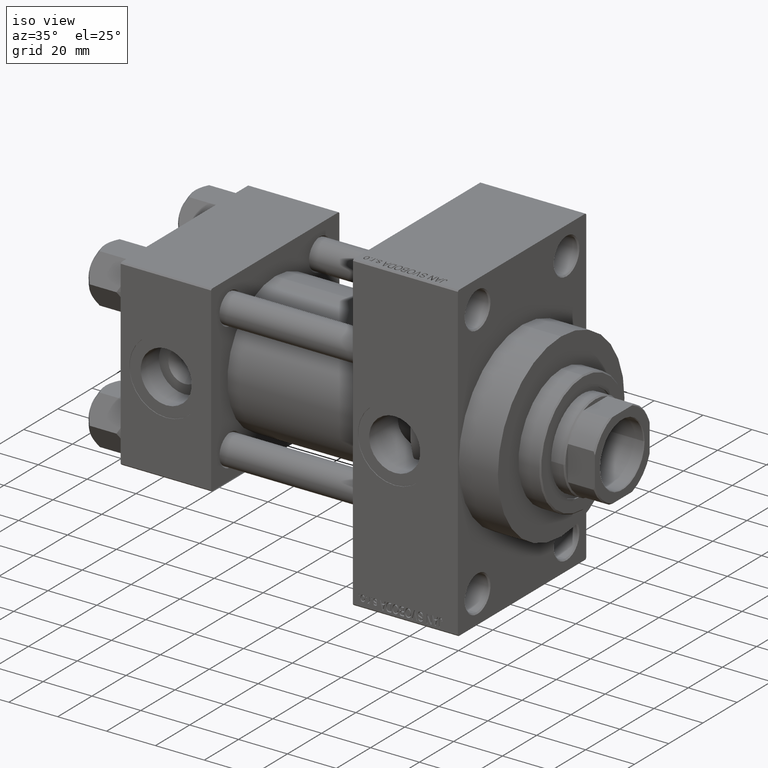
[diagram: clean part render]
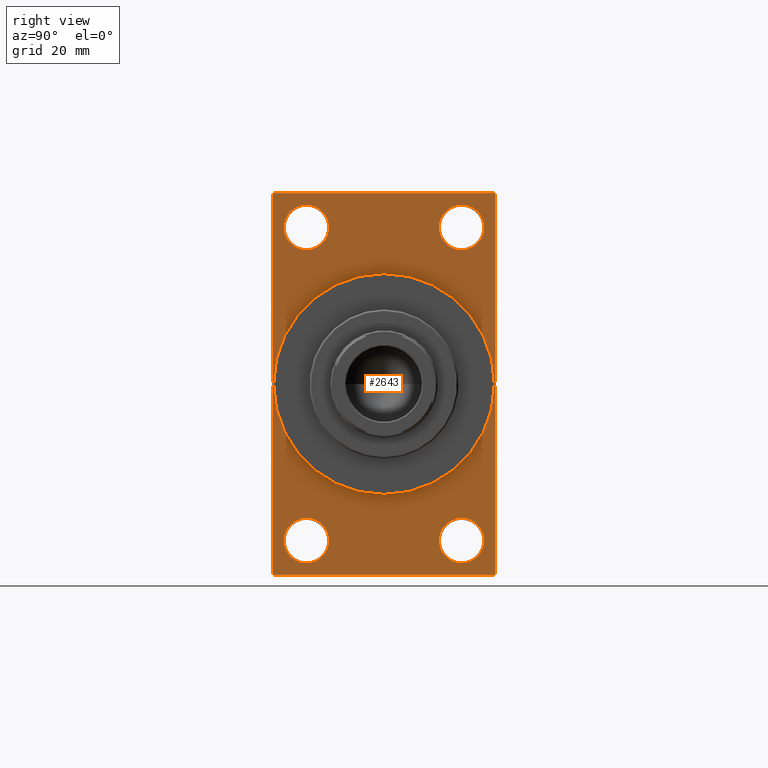
[diagram: tour spotlight — one face highlighted and labeled with its STEP entity id]
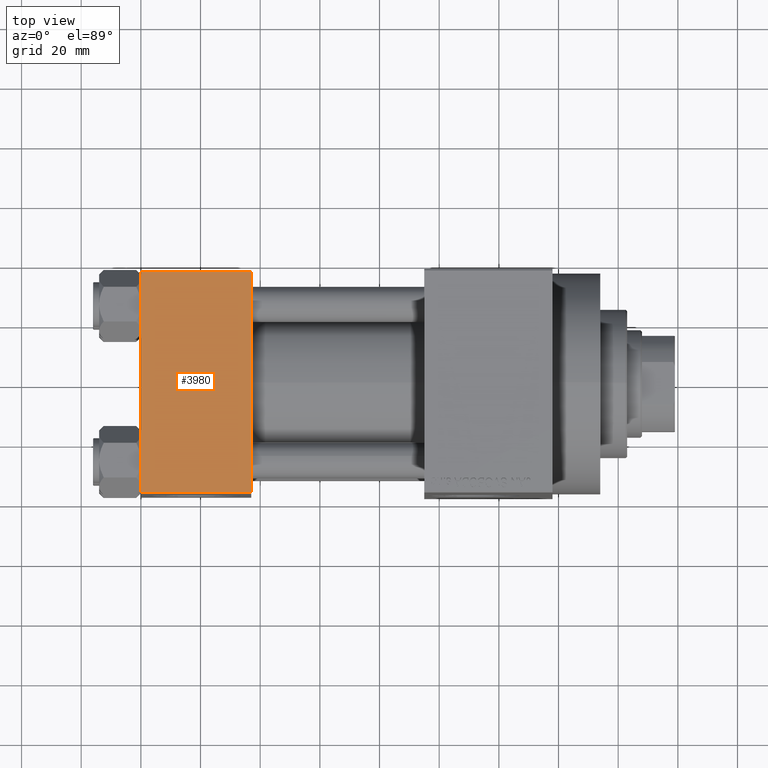
[diagram: tour spotlight — one face highlighted and labeled with its STEP entity id]
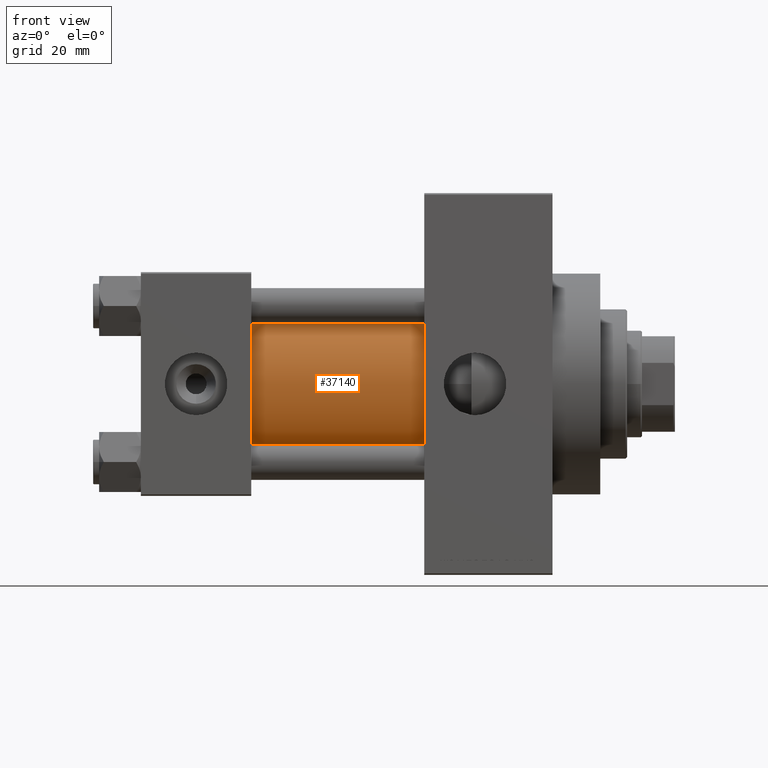
[diagram: tour spotlight — one face highlighted and labeled with its STEP entity id]
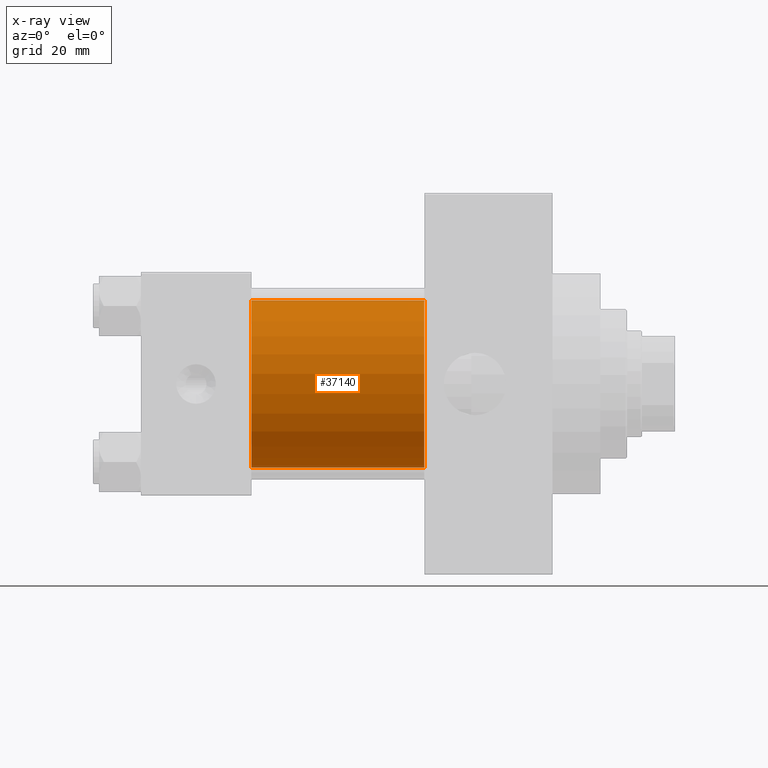
[diagram: x-ray of the same camera — body ghosted, this tour face saturated]
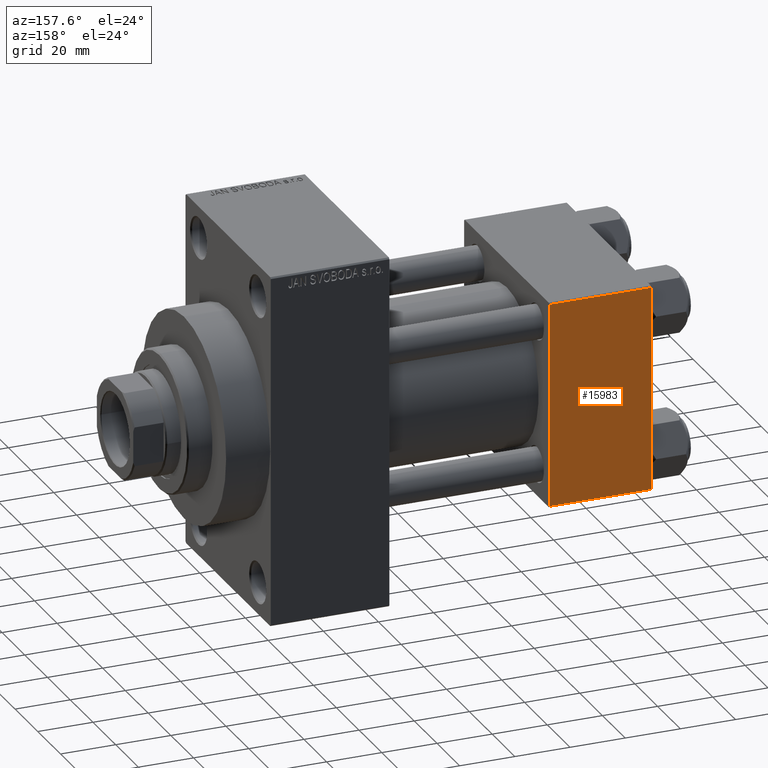
[diagram: tour spotlight — one face highlighted and labeled with its STEP entity id]
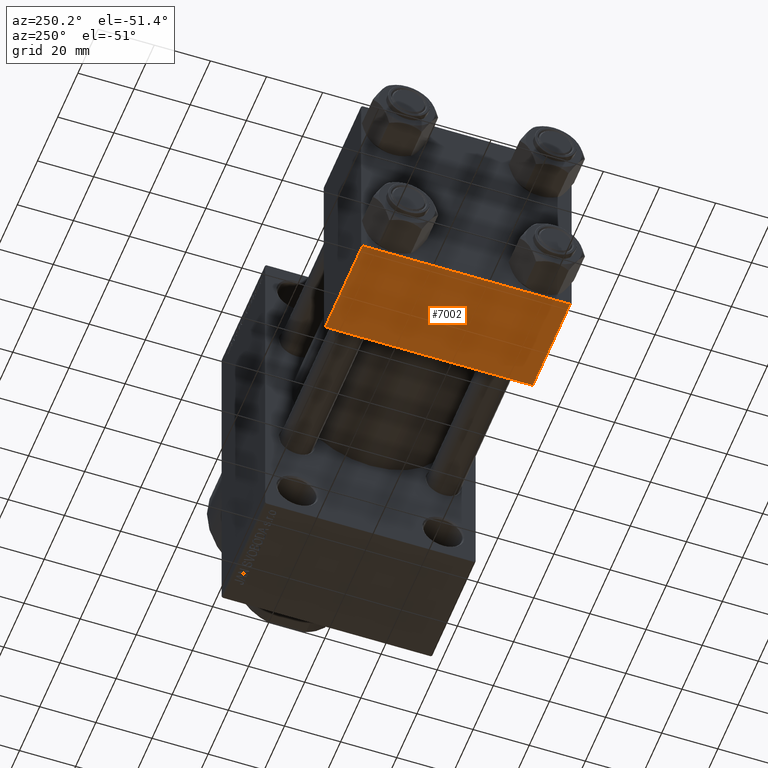
[diagram: tour spotlight — one face highlighted and labeled with its STEP entity id]
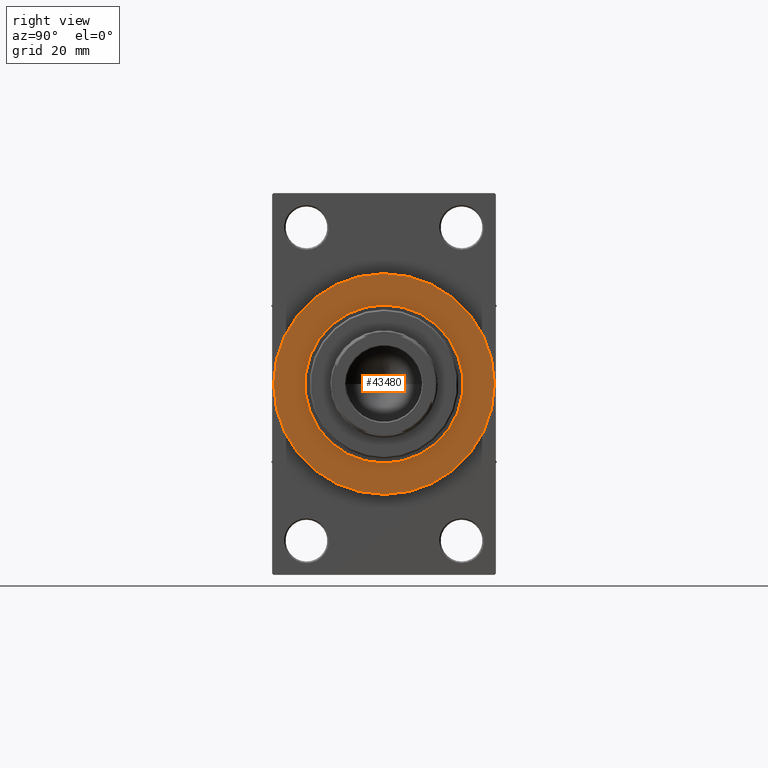
[diagram: tour spotlight — one face highlighted and labeled with its STEP entity id]
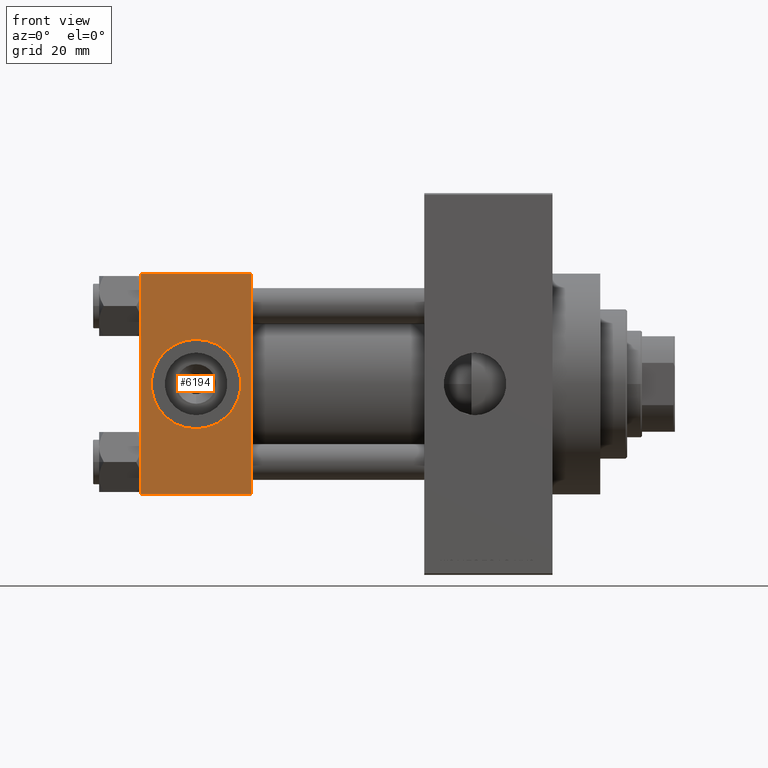
[diagram: tour spotlight — one face highlighted and labeled with its STEP entity id]
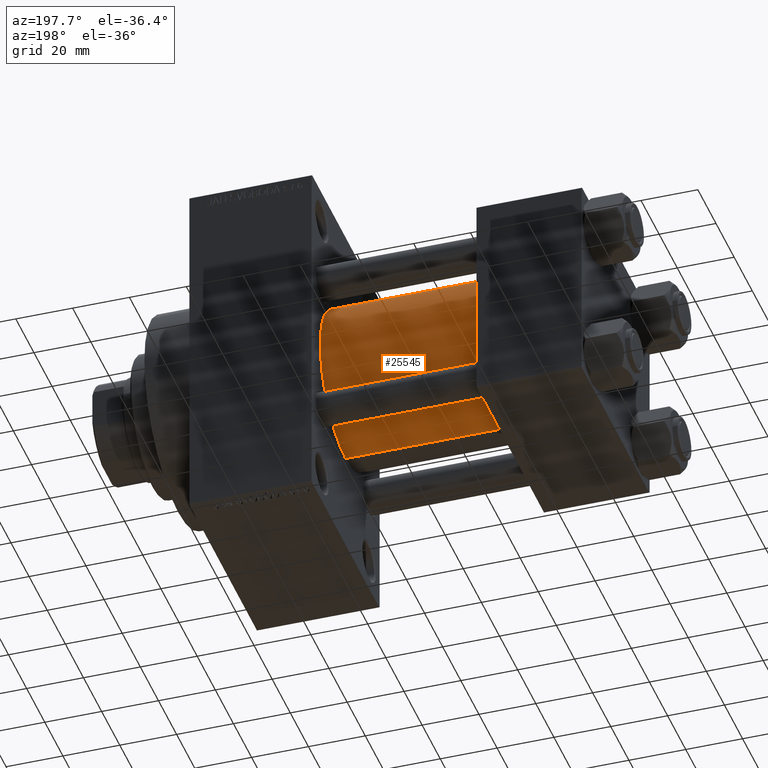
[diagram: tour spotlight — one face highlighted and labeled with its STEP entity id]
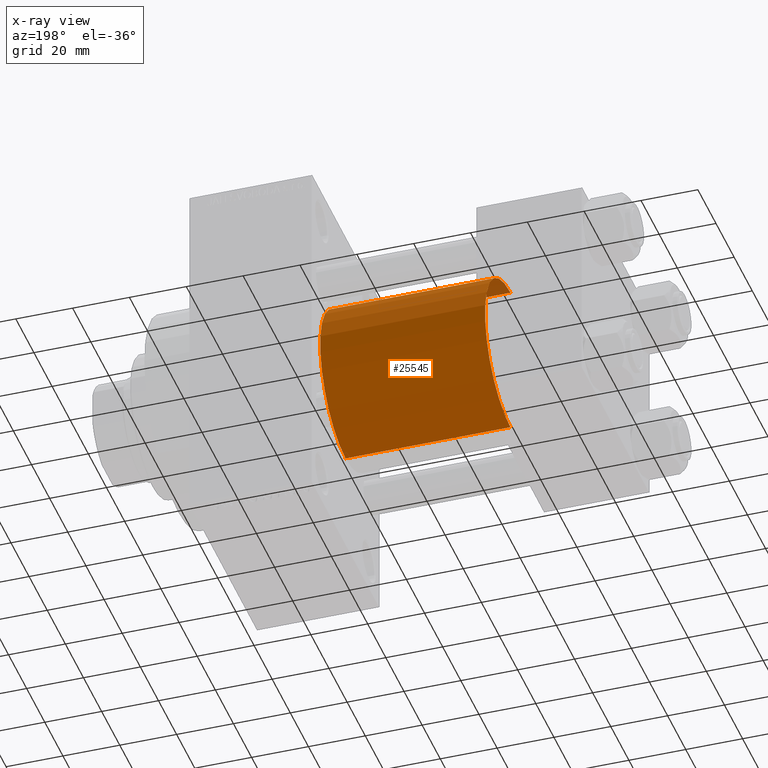
[diagram: x-ray of the same camera — body ghosted, this tour face saturated]
A machine part: a face-by-face anatomy tour. The part has 1104 B-rep faces; the first image is the clean iso view, then the 8 largest visible faces are spotlighted one at a time (largest first), each with its STEP entity span.

Face 1 — right view, entity #2643. In plain terms, the highlighted planar face has unit normal (-1, 0, 0).
Definition (entity closure, byte-faithful):
#136 = VECTOR ( 'NONE', #12666, 1000.000000000000000 ) ;
#301 = VERTEX_POINT ( 'NONE', #16399 ) ;
#358 = CARTESIAN_POINT ( 'NONE',  ( 138.0000000000000000, 36.99999999999997158, 63.99999999999998579 ) ) ;
#398 = CARTESIAN_POINT ( 'NONE',  ( 138.0000000000000000, -37.49999999999999289, 63.99999999999997158 ) ) ;
#1171 = CARTESIAN_POINT ( 'NONE',  ( 138.0000000000000000, -36.99999999999993605, -64.00000000000001421 ) ) ;
#1244 = CIRCLE ( 'NONE', #5836, 7.500000000000007105 ) ;
#1406 = CIRCLE ( 'NONE', #22048, 7.500000000000007105 ) ;
#1420 = CARTESIAN_POINT ( 'NONE',  ( 138.0000000000000000, -25.99999999999999645, 60.00000000000000711 ) ) ;
#1608 = EDGE_CURVE ( 'NONE', #36813, #31689, #1406, .T. ) ;
#2289 = CARTESIAN_POINT ( 'NONE',  ( 138.0000000000000000, -25.99999999999999645, -44.99999999999998579 ) ) ;
#2437 = VECTOR ( 'NONE', #21643, 1000.000000000000000 ) ;
#2625 = DIRECTION ( 'NONE',  ( 0.000000000000000000, -1.000000000000000000, -1.850371707708594563E-16 ) ) ;
#2643 = ADVANCED_FACE ( 'NONE', ( #27420, #34823, #16708, #43416, #42705, #46289 ), #7148, .F. ) ;
#2821 = LINE ( 'NONE', #17396, #18168 ) ;
#3546 = DIRECTION ( 'NONE',  ( 0.000000000000000000, -5.421010862427522170E-17, -1.000000000000000000 ) ) ;
#3555 = DIRECTION ( 'NONE',  ( -1.000000000000000000, 0.000000000000000000, -0.000000000000000000 ) ) ;
#3947 = ORIENTED_EDGE ( 'NONE', *, *, #25293, .T. ) ;
#4187 = EDGE_LOOP ( 'NONE', ( #30699, #28519 ) ) ;
#5275 = ORIENTED_EDGE ( 'NONE', *, *, #24184, .T. ) ;
#5653 = DIRECTION ( 'NONE',  ( 0.000000000000000000, 0.000000000000000000, 1.000000000000000000 ) ) ;
#5836 = AXIS2_PLACEMENT_3D ( 'NONE', #21641, #29032, #43598 ) ;
#6098 = AXIS2_PLACEMENT_3D ( 'NONE', #28850, #17661, #24796 ) ;
#6153 = EDGE_LOOP ( 'NONE', ( #17266, #9884 ) ) ;
#6237 = AXIS2_PLACEMENT_3D ( 'NONE', #32932, #40317, #8098 ) ;
#6274 = CARTESIAN_POINT ( 'NONE',  ( 138.0000000000000000, 36.99999999999999289, -64.00000000000000000 ) ) ;
#6416 = VERTEX_POINT ( 'NONE', #15379 ) ;
#6542 = ORIENTED_EDGE ( 'NONE', *, *, #42463, .T. ) ;
#6606 = VERTEX_POINT ( 'NONE', #35611 ) ;
#6690 = VECTOR ( 'NONE', #47154, 1000.000000000000000 ) ;
#6878 = ORIENTED_EDGE ( 'NONE', *, *, #37561, .T. ) ;
#6929 = EDGE_CURVE ( 'NONE', #14658, #31014, #45114, .T. ) ;
#7119 = EDGE_CURVE ( 'NONE', #17736, #29966, #7777, .T. ) ;
#7148 = PLANE ( 'NONE',  #6098 ) ;
#7185 = CARTESIAN_POINT ( 'NONE',  ( 138.0000000000000000, -25.99999999999999645, -52.49999999999999289 ) ) ;
#7777 = CIRCLE ( 'NONE', #6237, 37.00000000000000000 ) ;
#7880 = ORIENTED_EDGE ( 'NONE', *, *, #6929, .T. ) ;
#8098 = DIRECTION ( 'NONE',  ( 0.000000000000000000, 0.000000000000000000, -1.000000000000000000 ) ) ;
#8261 = VERTEX_POINT ( 'NONE', #28440 ) ;
#8502 = VECTOR ( 'NONE', #19272, 999.9999999999998863 ) ;
#9019 = CIRCLE ( 'NONE', #28813, 7.500000000000007105 ) ;
#9884 = ORIENTED_EDGE ( 'NONE', *, *, #43584, .T. ) ;
#9948 = EDGE_CURVE ( 'NONE', #25614, #21559, #21838, .T. ) ;
#10690 = CARTESIAN_POINT ( 'NONE',  ( 138.0000000000000000, 37.49999999999999289, -64.00000000000000000 ) ) ;
#10732 = CARTESIAN_POINT ( 'NONE',  ( 138.0000000000000000, 26.00000000000000000, 52.49999999999999289 ) ) ;
#11133 = CIRCLE ( 'NONE', #37763, 7.500000000000007105 ) ;
#11416 = CARTESIAN_POINT ( 'NONE',  ( 138.0000000000000000, 26.00000000000000000, -52.49999999999999289 ) ) ;
#12212 = EDGE_CURVE ( 'NONE', #21559, #301, #2821, .T. ) ;
#12236 = EDGE_CURVE ( 'NONE', #22977, #44106, #9019, .T. ) ;
#12238 = DIRECTION ( 'NONE',  ( -0.000000000000000000, -0.7071067811865524577, -0.7071067811865426878 ) ) ;
#12431 = CARTESIAN_POINT ( 'NONE',  ( 138.0000000000000000, 37.49999999999999289, -63.50000000000001421 ) ) ;
#12666 = DIRECTION ( 'NONE',  ( -0.000000000000000000, 0.7071067811865573427, 0.7071067811865378028 ) ) ;
#12973 = ORIENTED_EDGE ( 'NONE', *, *, #37583, .T. ) ;
#13021 = CARTESIAN_POINT ( 'NONE',  ( 138.0000000000000000, 0.000000000000000000, 37.00000000000000000 ) ) ;
#13108 = EDGE_CURVE ( 'NONE', #14186, #20908, #39548, .T. ) ;
#14186 = VERTEX_POINT ( 'NONE', #36667 ) ;
#14658 = VERTEX_POINT ( 'NONE', #6274 ) ;
#14907 = CARTESIAN_POINT ( 'NONE',  ( 138.0000000000000000, -37.49999999999999289, 63.49999999999994316 ) ) ;
#15225 = DIRECTION ( 'NONE',  ( 0.000000000000000000, -1.000000000000000000, -1.850371707708594563E-16 ) ) ;
#15379 = CARTESIAN_POINT ( 'NONE',  ( 138.0000000000000000, -37.49999999999999289, -63.49999999999997158 ) ) ;
#16164 = VECTOR ( 'NONE', #2625, 1000.000000000000000 ) ;
#16399 = CARTESIAN_POINT ( 'NONE',  ( 138.0000000000000000, -36.99999999999995737, 63.99999999999997158 ) ) ;
#16503 = EDGE_LOOP ( 'NONE', ( #12973, #20522 ) ) ;
#16708 = FACE_BOUND ( 'NONE', #6153, .T. ) ;
#16722 = LINE ( 'NONE', #10690, #16164 ) ;
#17090 = EDGE_CURVE ( 'NONE', #301, #8261, #26314, .T. ) ;
#17266 = ORIENTED_EDGE ( 'NONE', *, *, #12236, .T. ) ;
#17396 = CARTESIAN_POINT ( 'NONE',  ( 138.0000000000000000, 37.50000000000000000, 63.99999999999998579 ) ) ;
#17420 = DIRECTION ( 'NONE',  ( 0.000000000000000000, 0.000000000000000000, 1.000000000000000000 ) ) ;
#17661 = DIRECTION ( 'NONE',  ( -1.000000000000000000, 0.000000000000000000, -0.000000000000000000 ) ) ;
#17736 = VERTEX_POINT ( 'NONE', #13021 ) ;
#18168 = VECTOR ( 'NONE', #15225, 1000.000000000000000 ) ;
#18208 = AXIS2_PLACEMENT_3D ( 'NONE', #10732, #3555, #17420 ) ;
#18470 = CIRCLE ( 'NONE', #29892, 7.500000000000007105 ) ;
#19151 = ORIENTED_EDGE ( 'NONE', *, *, #1608, .T. ) ;
#19272 = DIRECTION ( 'NONE',  ( 0.000000000000000000, 0.7071067811865574537, -0.7071067811865376918 ) ) ;
#19833 = VERTEX_POINT ( 'NONE', #1420 ) ;
#20522 = ORIENTED_EDGE ( 'NONE', *, *, #13108, .T. ) ;
#20908 = VERTEX_POINT ( 'NONE', #36371 ) ;
#20916 = DIRECTION ( 'NONE',  ( -1.000000000000000000, 0.000000000000000000, -0.000000000000000000 ) ) ;
#21086 = CARTESIAN_POINT ( 'NONE',  ( 138.0000000000000000, 0.000000000000000000, 0.000000000000000000 ) ) ;
#21327 = DIRECTION ( 'NONE',  ( 1.000000000000000000, 0.000000000000000000, 0.000000000000000000 ) ) ;
#21436 = CARTESIAN_POINT ( 'NONE',  ( 138.0000000000000000, 26.00000000000000000, -60.00000000000000000 ) ) ;
#21559 = VERTEX_POINT ( 'NONE', #45897 ) ;
#21623 = CARTESIAN_POINT ( 'NONE',  ( 138.0000000000000000, -25.99999999999999645, -52.49999999999999289 ) ) ;
#21641 = CARTESIAN_POINT ( 'NONE',  ( 138.0000000000000000, 26.00000000000000000, -52.49999999999999289 ) ) ;
#21643 = DIRECTION ( 'NONE',  ( 0.000000000000000000, 0.000000000000000000, -1.000000000000000000 ) ) ;
#21734 = DIRECTION ( 'NONE',  ( -1.000000000000000000, 0.000000000000000000, -0.000000000000000000 ) ) ;
#21838 = LINE ( 'NONE', #358, #6690 ) ;
#22048 = AXIS2_PLACEMENT_3D ( 'NONE', #21623, #36175, #32844 ) ;
#22580 = EDGE_CURVE ( 'NONE', #19833, #6606, #18470, .T. ) ;
#22828 = VECTOR ( 'NONE', #12238, 1000.000000000000000 ) ;
#22977 = VERTEX_POINT ( 'NONE', #21436 ) ;
#22982 = DIRECTION ( 'NONE',  ( -1.000000000000000000, 0.000000000000000000, -0.000000000000000000 ) ) ;
#23044 = DIRECTION ( 'NONE',  ( 0.000000000000000000, 0.000000000000000000, 1.000000000000000000 ) ) ;
#23750 = VERTEX_POINT ( 'NONE', #1171 ) ;
#23857 = VECTOR ( 'NONE', #3546, 1000.000000000000000 ) ;
#24143 = AXIS2_PLACEMENT_3D ( 'NONE', #7185, #35343, #32005 ) ;
#24184 = EDGE_CURVE ( 'NONE', #6416, #23750, #44799, .T. ) ;
#24796 = DIRECTION ( 'NONE',  ( -0.000000000000000000, 0.000000000000000000, 1.000000000000000000 ) ) ;
#25293 = EDGE_CURVE ( 'NONE', #8261, #6416, #32627, .T. ) ;
#25614 = VERTEX_POINT ( 'NONE', #30841 ) ;
#25993 = EDGE_CURVE ( 'NONE', #14658, #23750, #16722, .T. ) ;
#26314 = LINE ( 'NONE', #14907, #22828 ) ;
#27420 = FACE_BOUND ( 'NONE', #37675, .T. ) ;
#27665 = EDGE_CURVE ( 'NONE', #25614, #31014, #43160, .T. ) ;
#27769 = EDGE_CURVE ( 'NONE', #29966, #17736, #45982, .T. ) ;
#27862 = EDGE_LOOP ( 'NONE', ( #19151, #6878 ) ) ;
#28001 = DIRECTION ( 'NONE',  ( 0.000000000000000000, 0.000000000000000000, -1.000000000000000000 ) ) ;
#28440 = CARTESIAN_POINT ( 'NONE',  ( 138.0000000000000000, -37.49999999999999289, 63.49999999999994316 ) ) ;
#28457 = ORIENTED_EDGE ( 'NONE', *, *, #12212, .T. ) ;
#28498 = CARTESIAN_POINT ( 'NONE',  ( 138.0000000000000000, 4.531193156845206793E-15, -37.00000000000000000 ) ) ;
#28519 = ORIENTED_EDGE ( 'NONE', *, *, #27769, .F. ) ;
#28598 = CARTESIAN_POINT ( 'NONE',  ( 138.0000000000000000, 37.50000000000000000, 63.99999999999998579 ) ) ;
#28813 = AXIS2_PLACEMENT_3D ( 'NONE', #11416, #37142, #23044 ) ;
#28850 = CARTESIAN_POINT ( 'NONE',  ( 138.0000000000000000, 0.000000000000000000, 0.000000000000000000 ) ) ;
#29032 = DIRECTION ( 'NONE',  ( -1.000000000000000000, 0.000000000000000000, -0.000000000000000000 ) ) ;
#29892 = AXIS2_PLACEMENT_3D ( 'NONE', #44262, #22982, #36859 ) ;
#29966 = VERTEX_POINT ( 'NONE', #28498 ) ;
#30699 = ORIENTED_EDGE ( 'NONE', *, *, #7119, .F. ) ;
#30841 = CARTESIAN_POINT ( 'NONE',  ( 138.0000000000000000, 37.50000000000000000, 63.49999999999998579 ) ) ;
#31014 = VERTEX_POINT ( 'NONE', #36388 ) ;
#31098 = CARTESIAN_POINT ( 'NONE',  ( 138.0000000000000000, 26.00000000000000000, -44.99999999999998579 ) ) ;
#31421 = CARTESIAN_POINT ( 'NONE',  ( 138.0000000000000000, -25.99999999999999645, 52.50000000000000000 ) ) ;
#31689 = VERTEX_POINT ( 'NONE', #2289 ) ;
#32005 = DIRECTION ( 'NONE',  ( 0.000000000000000000, 0.000000000000000000, 1.000000000000000000 ) ) ;
#32478 = DIRECTION ( 'NONE',  ( 0.000000000000000000, 0.000000000000000000, 1.000000000000000000 ) ) ;
#32627 = LINE ( 'NONE', #398, #2437 ) ;
#32844 = DIRECTION ( 'NONE',  ( 0.000000000000000000, 0.000000000000000000, 1.000000000000000000 ) ) ;
#32932 = CARTESIAN_POINT ( 'NONE',  ( 138.0000000000000000, 0.000000000000000000, 0.000000000000000000 ) ) ;
#34823 = FACE_BOUND ( 'NONE', #27862, .T. ) ;
#35343 = DIRECTION ( 'NONE',  ( -1.000000000000000000, 0.000000000000000000, -0.000000000000000000 ) ) ;
#35380 = ORIENTED_EDGE ( 'NONE', *, *, #9948, .T. ) ;
#35611 = CARTESIAN_POINT ( 'NONE',  ( 138.0000000000000000, -25.99999999999999645, 44.99999999999999289 ) ) ;
#36175 = DIRECTION ( 'NONE',  ( -1.000000000000000000, 0.000000000000000000, -0.000000000000000000 ) ) ;
#36371 = CARTESIAN_POINT ( 'NONE',  ( 138.0000000000000000, 26.00000000000000000, 44.99999999999998579 ) ) ;
#36388 = CARTESIAN_POINT ( 'NONE',  ( 138.0000000000000000, 37.49999999999999289, -63.50000000000001421 ) ) ;
#36667 = CARTESIAN_POINT ( 'NONE',  ( 138.0000000000000000, 26.00000000000000000, 60.00000000000000000 ) ) ;
#36813 = VERTEX_POINT ( 'NONE', #38318 ) ;
#36859 = DIRECTION ( 'NONE',  ( 0.000000000000000000, 0.000000000000000000, 1.000000000000000000 ) ) ;
#37077 = EDGE_LOOP ( 'NONE', ( #3947, #5275, #43988, #7880, #46192, #35380, #28457, #39866 ) ) ;
#37142 = DIRECTION ( 'NONE',  ( -1.000000000000000000, 0.000000000000000000, -0.000000000000000000 ) ) ;
#37561 = EDGE_CURVE ( 'NONE', #31689, #36813, #41664, .T. ) ;
#37583 = EDGE_CURVE ( 'NONE', #20908, #14186, #40889, .T. ) ;
#37624 = CARTESIAN_POINT ( 'NONE',  ( 138.0000000000000000, -36.99999999999993605, -64.00000000000001421 ) ) ;
#37675 = EDGE_LOOP ( 'NONE', ( #6542, #46919 ) ) ;
#37763 = AXIS2_PLACEMENT_3D ( 'NONE', #31421, #20916, #5653 ) ;
#38318 = CARTESIAN_POINT ( 'NONE',  ( 138.0000000000000000, -25.99999999999999645, -60.00000000000000000 ) ) ;
#39548 = CIRCLE ( 'NONE', #18208, 7.500000000000007105 ) ;
#39866 = ORIENTED_EDGE ( 'NONE', *, *, #17090, .T. ) ;
#39877 = AXIS2_PLACEMENT_3D ( 'NONE', #21086, #21327, #28001 ) ;
#40317 = DIRECTION ( 'NONE',  ( 1.000000000000000000, 0.000000000000000000, 0.000000000000000000 ) ) ;
#40889 = CIRCLE ( 'NONE', #42543, 7.500000000000007105 ) ;
#41664 = CIRCLE ( 'NONE', #24143, 7.500000000000007105 ) ;
#42463 = EDGE_CURVE ( 'NONE', #6606, #19833, #11133, .T. ) ;
#42543 = AXIS2_PLACEMENT_3D ( 'NONE', #47046, #21734, #32478 ) ;
#42705 = FACE_BOUND ( 'NONE', #4187, .T. ) ;
#43160 = LINE ( 'NONE', #28598, #23857 ) ;
#43416 = FACE_BOUND ( 'NONE', #16503, .T. ) ;
#43584 = EDGE_CURVE ( 'NONE', #44106, #22977, #1244, .T. ) ;
#43598 = DIRECTION ( 'NONE',  ( 0.000000000000000000, 0.000000000000000000, 1.000000000000000000 ) ) ;
#43988 = ORIENTED_EDGE ( 'NONE', *, *, #25993, .F. ) ;
#44106 = VERTEX_POINT ( 'NONE', #31098 ) ;
#44262 = CARTESIAN_POINT ( 'NONE',  ( 138.0000000000000000, -25.99999999999999645, 52.50000000000000000 ) ) ;
#44799 = LINE ( 'NONE', #37624, #8502 ) ;
#45114 = LINE ( 'NONE', #12431, #136 ) ;
#45897 = CARTESIAN_POINT ( 'NONE',  ( 138.0000000000000000, 36.99999999999997158, 63.99999999999998579 ) ) ;
#45982 = CIRCLE ( 'NONE', #39877, 37.00000000000000000 ) ;
#46192 = ORIENTED_EDGE ( 'NONE', *, *, #27665, .F. ) ;
#46289 = FACE_OUTER_BOUND ( 'NONE', #37077, .T. ) ;
#46919 = ORIENTED_EDGE ( 'NONE', *, *, #22580, .T. ) ;
#47046 = CARTESIAN_POINT ( 'NONE',  ( 138.0000000000000000, 26.00000000000000000, 52.49999999999999289 ) ) ;
#47154 = DIRECTION ( 'NONE',  ( 0.000000000000000000, -0.7071067811865672237, 0.7071067811865279218 ) ) ;

Face 2 — top view, entity #3980. In plain terms, the highlighted planar face has unit normal (0, 0, -1).
Definition (entity closure, byte-faithful):
#3980 = ADVANCED_FACE ( 'NONE', ( #6390 ), #32155, .F. ) ;
#4804 = VERTEX_POINT ( 'NONE', #34049 ) ;
#5476 = EDGE_CURVE ( 'NONE', #4804, #27371, #7505, .T. ) ;
#6390 = FACE_OUTER_BOUND ( 'NONE', #16740, .T. ) ;
#7098 = DIRECTION ( 'NONE',  ( 0.000000000000000000, 9.251858538542971581E-17, -1.000000000000000000 ) ) ;
#7505 = LINE ( 'NONE', #22738, #37377 ) ;
#11694 = CARTESIAN_POINT ( 'NONE',  ( 37.00000000000000000, -37.00000000000000711, 37.49999999999999289 ) ) ;
#11845 = ORIENTED_EDGE ( 'NONE', *, *, #33134, .F. ) ;
#13264 = VERTEX_POINT ( 'NONE', #30232 ) ;
#14779 = ORIENTED_EDGE ( 'NONE', *, *, #45902, .T. ) ;
#14909 = DIRECTION ( 'NONE',  ( -1.000000000000000000, 0.000000000000000000, 0.000000000000000000 ) ) ;
#16277 = LINE ( 'NONE', #45378, #26270 ) ;
#16740 = EDGE_LOOP ( 'NONE', ( #22543, #14779, #11845, #17886 ) ) ;
#16860 = VECTOR ( 'NONE', #30981, 1000.000000000000000 ) ;
#17406 = VECTOR ( 'NONE', #33398, 1000.000000000000000 ) ;
#17886 = ORIENTED_EDGE ( 'NONE', *, *, #5476, .T. ) ;
#19305 = LINE ( 'NONE', #23829, #16860 ) ;
#22543 = ORIENTED_EDGE ( 'NONE', *, *, #22851, .T. ) ;
#22738 = CARTESIAN_POINT ( 'NONE',  ( 0.000000000000000000, 36.99999999999999289, 37.50000000000000000 ) ) ;
#22851 = EDGE_CURVE ( 'NONE', #27371, #23585, #19305, .T. ) ;
#23585 = VERTEX_POINT ( 'NONE', #46106 ) ;
#23829 = CARTESIAN_POINT ( 'NONE',  ( 0.000000000000000000, 37.49999999999999289, 37.50000000000000000 ) ) ;
#26270 = VECTOR ( 'NONE', #27228, 1000.000000000000000 ) ;
#26673 = AXIS2_PLACEMENT_3D ( 'NONE', #39078, #7098, #32631 ) ;
#27228 = DIRECTION ( 'NONE',  ( 0.000000000000000000, -1.000000000000000000, -9.251858538542971581E-17 ) ) ;
#27371 = VERTEX_POINT ( 'NONE', #43698 ) ;
#29120 = LINE ( 'NONE', #11694, #17406 ) ;
#30232 = CARTESIAN_POINT ( 'NONE',  ( 37.00000000000000000, -37.00000000000000711, 37.49999999999999289 ) ) ;
#30981 = DIRECTION ( 'NONE',  ( 0.000000000000000000, -1.000000000000000000, -9.251858538542971581E-17 ) ) ;
#32155 = PLANE ( 'NONE',  #26673 ) ;
#32631 = DIRECTION ( 'NONE',  ( 0.000000000000000000, 1.000000000000000000, 9.251858538542971581E-17 ) ) ;
#33134 = EDGE_CURVE ( 'NONE', #4804, #13264, #16277, .T. ) ;
#33398 = DIRECTION ( 'NONE',  ( 1.000000000000000000, 0.000000000000000000, 0.000000000000000000 ) ) ;
#34049 = CARTESIAN_POINT ( 'NONE',  ( 37.00000000000000000, 36.99999999999999289, 37.50000000000000000 ) ) ;
#37377 = VECTOR ( 'NONE', #14909, 1000.000000000000000 ) ;
#39078 = CARTESIAN_POINT ( 'NONE',  ( 37.00000000000000000, 37.49999999999999289, 37.50000000000000000 ) ) ;
#43698 = CARTESIAN_POINT ( 'NONE',  ( 0.000000000000000000, 36.99999999999999289, 37.50000000000000000 ) ) ;
#45378 = CARTESIAN_POINT ( 'NONE',  ( 37.00000000000000000, 37.49999999999999289, 37.50000000000000000 ) ) ;
#45902 = EDGE_CURVE ( 'NONE', #23585, #13264, #29120, .T. ) ;
#46106 = CARTESIAN_POINT ( 'NONE',  ( 0.000000000000000000, -37.00000000000000711, 37.49999999999999289 ) ) ;

Face 3 — front view, entity #37140. An x-ray twin of the same camera follows (body ghosted, this face saturated) — the face is partly hidden behind the body. In plain terms, the highlighted cylindrical surface (partial cylindrical patch) has radius 28 mm, axis along (-1, -0, -0).
Definition (entity closure, byte-faithful):
#1616 = DIRECTION ( 'NONE',  ( 1.000000000000000000, -0.000000000000000000, 0.000000000000000000 ) ) ;
#3971 = CARTESIAN_POINT ( 'NONE',  ( 95.00000000000000000, -2.602085213965210642E-15, 28.00000000000000000 ) ) ;
#4367 = EDGE_CURVE ( 'NONE', #28517, #35690, #24222, .T. ) ;
#7794 = DIRECTION ( 'NONE',  ( -1.000000000000000000, -0.000000000000000000, -0.000000000000000000 ) ) ;
#8323 = DIRECTION ( 'NONE',  ( 1.000000000000000000, 0.000000000000000000, 0.000000000000000000 ) ) ;
#10510 = EDGE_CURVE ( 'NONE', #24004, #35690, #21948, .T. ) ;
#10624 = CARTESIAN_POINT ( 'NONE',  ( 95.00000000000000000, 8.269258236473776482E-16, -28.00000000000000000 ) ) ;
#11524 = EDGE_LOOP ( 'NONE', ( #12145, #43323, #18605, #26859 ) ) ;
#12145 = ORIENTED_EDGE ( 'NONE', *, *, #4367, .F. ) ;
#12843 = DIRECTION ( 'NONE',  ( 0.000000000000000000, 0.000000000000000000, 1.000000000000000000 ) ) ;
#18605 = ORIENTED_EDGE ( 'NONE', *, *, #28743, .T. ) ;
#18740 = CARTESIAN_POINT ( 'NONE',  ( 95.00000000000000000, -2.602085213965210642E-15, 0.000000000000000000 ) ) ;
#19419 = DIRECTION ( 'NONE',  ( -1.000000000000000000, -0.000000000000000000, -0.000000000000000000 ) ) ;
#21185 = EDGE_CURVE ( 'NONE', #31581, #28517, #34407, .T. ) ;
#21948 = CIRCLE ( 'NONE', #26471, 28.00000000000000000 ) ;
#24004 = VERTEX_POINT ( 'NONE', #32679 ) ;
#24222 = LINE ( 'NONE', #10624, #35827 ) ;
#25159 = DIRECTION ( 'NONE',  ( -1.000000000000000000, -0.000000000000000000, -0.000000000000000000 ) ) ;
#26298 = AXIS2_PLACEMENT_3D ( 'NONE', #18740, #19419, #40449 ) ;
#26471 = AXIS2_PLACEMENT_3D ( 'NONE', #46009, #1616, #12843 ) ;
#26859 = ORIENTED_EDGE ( 'NONE', *, *, #10510, .T. ) ;
#28517 = VERTEX_POINT ( 'NONE', #29312 ) ;
#28743 = EDGE_CURVE ( 'NONE', #31581, #24004, #36418, .T. ) ;
#29107 = CARTESIAN_POINT ( 'NONE',  ( 95.00000000000000000, -2.602085213965210642E-15, 0.000000000000000000 ) ) ;
#29312 = CARTESIAN_POINT ( 'NONE',  ( 95.00000000000000000, 8.269258236473776482E-16, -28.00000000000000000 ) ) ;
#31581 = VERTEX_POINT ( 'NONE', #40727 ) ;
#32679 = CARTESIAN_POINT ( 'NONE',  ( 37.00000000000000000, -2.602085213965210642E-15, 28.00000000000000000 ) ) ;
#33758 = CARTESIAN_POINT ( 'NONE',  ( 37.00000000000000000, 8.269258236473776482E-16, -28.00000000000000000 ) ) ;
#34407 = CIRCLE ( 'NONE', #43606, 28.00000000000000000 ) ;
#35690 = VERTEX_POINT ( 'NONE', #33758 ) ;
#35827 = VECTOR ( 'NONE', #25159, 1000.000000000000000 ) ;
#36418 = LINE ( 'NONE', #3971, #46015 ) ;
#37140 = ADVANCED_FACE ( 'NONE', ( #37544 ), #44719, .T. ) ;
#37544 = FACE_OUTER_BOUND ( 'NONE', #11524, .T. ) ;
#40449 = DIRECTION ( 'NONE',  ( 0.000000000000000000, 0.000000000000000000, 1.000000000000000000 ) ) ;
#40727 = CARTESIAN_POINT ( 'NONE',  ( 95.00000000000000000, -2.602085213965210642E-15, 28.00000000000000000 ) ) ;
#41695 = DIRECTION ( 'NONE',  ( 0.000000000000000000, 0.000000000000000000, -1.000000000000000000 ) ) ;
#43323 = ORIENTED_EDGE ( 'NONE', *, *, #21185, .F. ) ;
#43606 = AXIS2_PLACEMENT_3D ( 'NONE', #29107, #8323, #41695 ) ;
#44719 = CYLINDRICAL_SURFACE ( 'NONE', #26298, 28.00000000000000000 ) ;
#46009 = CARTESIAN_POINT ( 'NONE',  ( 37.00000000000000000, -2.602085213965210642E-15, 0.000000000000000000 ) ) ;
#46015 = VECTOR ( 'NONE', #7794, 1000.000000000000000 ) ;

Face 4 — auxiliary view, entity #15983. In plain terms, the highlighted planar face has unit normal (0, 1, 0).
Definition (entity closure, byte-faithful):
#575 = DIRECTION ( 'NONE',  ( -1.000000000000000000, 0.000000000000000000, 0.000000000000000000 ) ) ;
#3792 = VERTEX_POINT ( 'NONE', #22403 ) ;
#4423 = DIRECTION ( 'NONE',  ( -0.000000000000000000, 1.000000000000000000, 0.000000000000000000 ) ) ;
#7392 = EDGE_CURVE ( 'NONE', #3792, #42317, #27265, .T. ) ;
#8446 = EDGE_CURVE ( 'NONE', #3792, #28171, #23625, .T. ) ;
#8590 = CARTESIAN_POINT ( 'NONE',  ( 37.00000000000000000, 37.49999999999999289, 37.00000000000000000 ) ) ;
#11375 = FACE_OUTER_BOUND ( 'NONE', #46148, .T. ) ;
#12050 = PLANE ( 'NONE',  #27397 ) ;
#12559 = VERTEX_POINT ( 'NONE', #40892 ) ;
#12991 = ORIENTED_EDGE ( 'NONE', *, *, #15489, .T. ) ;
#13927 = DIRECTION ( 'NONE',  ( 0.000000000000000000, 0.000000000000000000, -1.000000000000000000 ) ) ;
#14957 = DIRECTION ( 'NONE',  ( 0.000000000000000000, -0.000000000000000000, 1.000000000000000000 ) ) ;
#15489 = EDGE_CURVE ( 'NONE', #28171, #12559, #35146, .T. ) ;
#15983 = ADVANCED_FACE ( 'NONE', ( #11375 ), #12050, .T. ) ;
#17024 = VECTOR ( 'NONE', #42236, 1000.000000000000000 ) ;
#18528 = CARTESIAN_POINT ( 'NONE',  ( 37.00000000000000000, 37.49999999999999289, 37.50000000000000000 ) ) ;
#20533 = VECTOR ( 'NONE', #13927, 1000.000000000000000 ) ;
#21456 = EDGE_CURVE ( 'NONE', #12559, #42317, #35733, .T. ) ;
#22403 = CARTESIAN_POINT ( 'NONE',  ( 0.000000000000000000, 37.49999999999999289, 37.00000000000000000 ) ) ;
#22991 = VECTOR ( 'NONE', #575, 1000.000000000000000 ) ;
#23143 = CARTESIAN_POINT ( 'NONE',  ( 37.00000000000000000, 37.49999999999999289, 37.00000000000000000 ) ) ;
#23400 = ORIENTED_EDGE ( 'NONE', *, *, #7392, .F. ) ;
#23625 = LINE ( 'NONE', #23143, #17024 ) ;
#24640 = CARTESIAN_POINT ( 'NONE',  ( 37.00000000000000000, 37.49999999999999289, 37.50000000000000000 ) ) ;
#25649 = ORIENTED_EDGE ( 'NONE', *, *, #21456, .T. ) ;
#27022 = CARTESIAN_POINT ( 'NONE',  ( 0.000000000000000000, 37.49999999999999289, 37.50000000000000000 ) ) ;
#27265 = LINE ( 'NONE', #27022, #33634 ) ;
#27397 = AXIS2_PLACEMENT_3D ( 'NONE', #18528, #4423, #14957 ) ;
#28171 = VERTEX_POINT ( 'NONE', #8590 ) ;
#30138 = CARTESIAN_POINT ( 'NONE',  ( 37.00000000000000000, 37.49999999999999289, -36.99999999999998579 ) ) ;
#33634 = VECTOR ( 'NONE', #34664, 1000.000000000000000 ) ;
#33748 = ORIENTED_EDGE ( 'NONE', *, *, #8446, .T. ) ;
#34664 = DIRECTION ( 'NONE',  ( 0.000000000000000000, 0.000000000000000000, -1.000000000000000000 ) ) ;
#35146 = LINE ( 'NONE', #24640, #20533 ) ;
#35733 = LINE ( 'NONE', #30138, #22991 ) ;
#40892 = CARTESIAN_POINT ( 'NONE',  ( 37.00000000000000000, 37.49999999999999289, -36.99999999999998579 ) ) ;
#42236 = DIRECTION ( 'NONE',  ( 1.000000000000000000, 0.000000000000000000, 0.000000000000000000 ) ) ;
#42245 = CARTESIAN_POINT ( 'NONE',  ( 0.000000000000000000, 37.49999999999999289, -36.99999999999998579 ) ) ;
#42317 = VERTEX_POINT ( 'NONE', #42245 ) ;
#46148 = EDGE_LOOP ( 'NONE', ( #12991, #25649, #23400, #33748 ) ) ;

Face 5 — auxiliary view, entity #7002. In plain terms, the highlighted planar face has unit normal (0, 0, -1).
Definition (entity closure, byte-faithful):
#2860 = VECTOR ( 'NONE', #27918, 1000.000000000000000 ) ;
#5749 = CARTESIAN_POINT ( 'NONE',  ( 0.000000000000000000, 37.49999999999999289, -37.50000000000000000 ) ) ;
#6463 = LINE ( 'NONE', #28635, #15813 ) ;
#7002 = ADVANCED_FACE ( 'NONE', ( #17444 ), #21239, .T. ) ;
#7558 = LINE ( 'NONE', #18533, #44841 ) ;
#9314 = EDGE_CURVE ( 'NONE', #17275, #34689, #9330, .T. ) ;
#9330 = LINE ( 'NONE', #5749, #2860 ) ;
#10293 = CARTESIAN_POINT ( 'NONE',  ( 37.00000000000000000, 36.99999999999997868, -37.50000000000000000 ) ) ;
#11915 = VERTEX_POINT ( 'NONE', #12382 ) ;
#12382 = CARTESIAN_POINT ( 'NONE',  ( 37.00000000000000000, -37.00000000000002132, -37.50000000000000711 ) ) ;
#13472 = CARTESIAN_POINT ( 'NONE',  ( 0.000000000000000000, -37.00000000000002132, -37.50000000000000711 ) ) ;
#13509 = EDGE_CURVE ( 'NONE', #17275, #46798, #7558, .T. ) ;
#15616 = VECTOR ( 'NONE', #20254, 1000.000000000000000 ) ;
#15813 = VECTOR ( 'NONE', #25539, 1000.000000000000000 ) ;
#16932 = CARTESIAN_POINT ( 'NONE',  ( 37.00000000000000000, 37.49999999999999289, -37.50000000000000000 ) ) ;
#17275 = VERTEX_POINT ( 'NONE', #21529 ) ;
#17444 = FACE_OUTER_BOUND ( 'NONE', #35995, .T. ) ;
#18533 = CARTESIAN_POINT ( 'NONE',  ( 37.00000000000000000, 36.99999999999997868, -37.50000000000000000 ) ) ;
#18761 = DIRECTION ( 'NONE',  ( 1.000000000000000000, 0.000000000000000000, 0.000000000000000000 ) ) ;
#20254 = DIRECTION ( 'NONE',  ( 0.000000000000000000, -1.000000000000000000, -9.251858538542972814E-17 ) ) ;
#21239 = PLANE ( 'NONE',  #43568 ) ;
#21529 = CARTESIAN_POINT ( 'NONE',  ( 0.000000000000000000, 36.99999999999997868, -37.50000000000000000 ) ) ;
#25539 = DIRECTION ( 'NONE',  ( -1.000000000000000000, 0.000000000000000000, 0.000000000000000000 ) ) ;
#27918 = DIRECTION ( 'NONE',  ( 0.000000000000000000, -1.000000000000000000, -9.251858538542972814E-17 ) ) ;
#28156 = CARTESIAN_POINT ( 'NONE',  ( 37.00000000000000000, 37.49999999999999289, -37.50000000000000000 ) ) ;
#28357 = LINE ( 'NONE', #16932, #15616 ) ;
#28635 = CARTESIAN_POINT ( 'NONE',  ( 0.000000000000000000, -37.00000000000002132, -37.50000000000000711 ) ) ;
#32239 = EDGE_CURVE ( 'NONE', #46798, #11915, #28357, .T. ) ;
#34689 = VERTEX_POINT ( 'NONE', #13472 ) ;
#35086 = DIRECTION ( 'NONE',  ( 0.000000000000000000, 9.251858538542972814E-17, -1.000000000000000000 ) ) ;
#35995 = EDGE_LOOP ( 'NONE', ( #44416, #39267, #45248, #41194 ) ) ;
#36032 = DIRECTION ( 'NONE',  ( 0.000000000000000000, 1.000000000000000000, 9.251858538542972814E-17 ) ) ;
#39267 = ORIENTED_EDGE ( 'NONE', *, *, #13509, .T. ) ;
#41194 = ORIENTED_EDGE ( 'NONE', *, *, #45303, .T. ) ;
#43568 = AXIS2_PLACEMENT_3D ( 'NONE', #28156, #35086, #36032 ) ;
#44416 = ORIENTED_EDGE ( 'NONE', *, *, #9314, .F. ) ;
#44841 = VECTOR ( 'NONE', #18761, 1000.000000000000000 ) ;
#45248 = ORIENTED_EDGE ( 'NONE', *, *, #32239, .T. ) ;
#45303 = EDGE_CURVE ( 'NONE', #11915, #34689, #6463, .T. ) ;
#46798 = VERTEX_POINT ( 'NONE', #10293 ) ;

Face 6 — right view, entity #43480. In plain terms, the highlighted planar face has unit normal (1, 0, 0).
Definition (entity closure, byte-faithful):
#1828 = CARTESIAN_POINT ( 'NONE',  ( 154.0000000000000284, 0.000000000000000000, 0.000000000000000000 ) ) ;
#4021 = VERTEX_POINT ( 'NONE', #17140 ) ;
#4340 = CIRCLE ( 'NONE', #41644, 37.00000000000000000 ) ;
#12132 = EDGE_CURVE ( 'NONE', #4021, #14331, #34142, .T. ) ;
#13608 = AXIS2_PLACEMENT_3D ( 'NONE', #42909, #21905, #40035 ) ;
#14002 = CIRCLE ( 'NONE', #29211, 26.50000000000000355 ) ;
#14331 = VERTEX_POINT ( 'NONE', #46653 ) ;
#16087 = ORIENTED_EDGE ( 'NONE', *, *, #29058, .F. ) ;
#16896 = CARTESIAN_POINT ( 'NONE',  ( 154.0000000000000284, 0.000000000000000000, 0.000000000000000000 ) ) ;
#17140 = CARTESIAN_POINT ( 'NONE',  ( 154.0000000000000284, 0.000000000000000000, 37.00000000000000000 ) ) ;
#17264 = AXIS2_PLACEMENT_3D ( 'NONE', #16896, #35013, #38352 ) ;
#17370 = FACE_BOUND ( 'NONE', #46491, .T. ) ;
#20363 = ORIENTED_EDGE ( 'NONE', *, *, #12132, .T. ) ;
#20663 = CIRCLE ( 'NONE', #32874, 26.50000000000000355 ) ;
#21905 = DIRECTION ( 'NONE',  ( 1.000000000000000000, 0.000000000000000000, 0.000000000000000000 ) ) ;
#22802 = CARTESIAN_POINT ( 'NONE',  ( 154.0000000000000284, 0.000000000000000000, -26.50000000000000355 ) ) ;
#22964 = EDGE_CURVE ( 'NONE', #44446, #39865, #20663, .T. ) ;
#23278 = ORIENTED_EDGE ( 'NONE', *, *, #44274, .T. ) ;
#24036 = FACE_OUTER_BOUND ( 'NONE', #39095, .T. ) ;
#24286 = DIRECTION ( 'NONE',  ( 1.000000000000000000, 0.000000000000000000, 0.000000000000000000 ) ) ;
#24305 = DIRECTION ( 'NONE',  ( 0.000000000000000000, 0.000000000000000000, -1.000000000000000000 ) ) ;
#28430 = CARTESIAN_POINT ( 'NONE',  ( 154.0000000000000284, 3.245314017740486554E-15, 26.50000000000000355 ) ) ;
#29058 = EDGE_CURVE ( 'NONE', #39865, #44446, #14002, .T. ) ;
#29211 = AXIS2_PLACEMENT_3D ( 'NONE', #1828, #45510, #45270 ) ;
#31669 = PLANE ( 'NONE',  #17264 ) ;
#32874 = AXIS2_PLACEMENT_3D ( 'NONE', #35513, #35282, #24305 ) ;
#34142 = CIRCLE ( 'NONE', #13608, 37.00000000000000000 ) ;
#35013 = DIRECTION ( 'NONE',  ( 1.000000000000000000, 0.000000000000000000, 0.000000000000000000 ) ) ;
#35282 = DIRECTION ( 'NONE',  ( 1.000000000000000000, 0.000000000000000000, 0.000000000000000000 ) ) ;
#35513 = CARTESIAN_POINT ( 'NONE',  ( 154.0000000000000284, 0.000000000000000000, 0.000000000000000000 ) ) ;
#36514 = ORIENTED_EDGE ( 'NONE', *, *, #22964, .F. ) ;
#38352 = DIRECTION ( 'NONE',  ( 0.000000000000000000, 0.000000000000000000, -1.000000000000000000 ) ) ;
#38599 = CARTESIAN_POINT ( 'NONE',  ( 154.0000000000000284, 0.000000000000000000, 0.000000000000000000 ) ) ;
#38842 = DIRECTION ( 'NONE',  ( 0.000000000000000000, 0.000000000000000000, -1.000000000000000000 ) ) ;
#39095 = EDGE_LOOP ( 'NONE', ( #20363, #23278 ) ) ;
#39865 = VERTEX_POINT ( 'NONE', #28430 ) ;
#40035 = DIRECTION ( 'NONE',  ( 0.000000000000000000, 0.000000000000000000, -1.000000000000000000 ) ) ;
#41644 = AXIS2_PLACEMENT_3D ( 'NONE', #38599, #24286, #38842 ) ;
#42909 = CARTESIAN_POINT ( 'NONE',  ( 154.0000000000000284, 0.000000000000000000, 0.000000000000000000 ) ) ;
#43480 = ADVANCED_FACE ( 'NONE', ( #17370, #24036 ), #31669, .T. ) ;
#44274 = EDGE_CURVE ( 'NONE', #14331, #4021, #4340, .T. ) ;
#44446 = VERTEX_POINT ( 'NONE', #22802 ) ;
#45270 = DIRECTION ( 'NONE',  ( 0.000000000000000000, 0.000000000000000000, -1.000000000000000000 ) ) ;
#45510 = DIRECTION ( 'NONE',  ( 1.000000000000000000, 0.000000000000000000, 0.000000000000000000 ) ) ;
#46491 = EDGE_LOOP ( 'NONE', ( #36514, #16087 ) ) ;
#46653 = CARTESIAN_POINT ( 'NONE',  ( 154.0000000000000284, 4.531193156845206793E-15, -37.00000000000000000 ) ) ;

Face 7 — front view, entity #6194. In plain terms, the highlighted planar face has unit normal (0, 1, 0).
Definition (entity closure, byte-faithful):
#939 = DIRECTION ( 'NONE',  ( 1.000000000000000000, 0.000000000000000000, 0.000000000000000000 ) ) ;
#1150 = AXIS2_PLACEMENT_3D ( 'NONE', #12400, #2775, #4759 ) ;
#1635 = ORIENTED_EDGE ( 'NONE', *, *, #7021, .T. ) ;
#1674 = LINE ( 'NONE', #45347, #39648 ) ;
#2504 = DIRECTION ( 'NONE',  ( 0.000000000000000000, -9.251858538542971581E-17, 1.000000000000000000 ) ) ;
#2775 = DIRECTION ( 'NONE',  ( 0.000000000000000000, -1.000000000000000000, -8.673617379884036705E-17 ) ) ;
#2866 = DIRECTION ( 'NONE',  ( 0.000000000000000000, 9.251858538542971581E-17, -1.000000000000000000 ) ) ;
#4357 = ORIENTED_EDGE ( 'NONE', *, *, #33435, .F. ) ;
#4636 = EDGE_CURVE ( 'NONE', #33960, #23399, #1674, .T. ) ;
#4759 = DIRECTION ( 'NONE',  ( 0.000000000000000000, 0.000000000000000000, -1.000000000000000000 ) ) ;
#4918 = ORIENTED_EDGE ( 'NONE', *, *, #26708, .F. ) ;
#5376 = DIRECTION ( 'NONE',  ( -0.000000000000000000, 1.000000000000000000, 9.251858538542971581E-17 ) ) ;
#6194 = ADVANCED_FACE ( 'NONE', ( #12538, #27785 ), #27071, .F. ) ;
#7021 = EDGE_CURVE ( 'NONE', #39796, #37208, #13153, .T. ) ;
#9677 = CARTESIAN_POINT ( 'NONE',  ( 37.00000000000000000, -37.50000000000000711, 37.49999999999999289 ) ) ;
#9767 = VECTOR ( 'NONE', #33735, 1000.000000000000000 ) ;
#12400 = CARTESIAN_POINT ( 'NONE',  ( 18.50000000000000000, -37.50000000000000711, -3.469446951953614978E-15 ) ) ;
#12538 = FACE_BOUND ( 'NONE', #22417, .T. ) ;
#12580 = CIRCLE ( 'NONE', #1150, 15.00000000000000178 ) ;
#12664 = DIRECTION ( 'NONE',  ( 0.000000000000000000, 9.251858538542971581E-17, -1.000000000000000000 ) ) ;
#13153 = LINE ( 'NONE', #35324, #34411 ) ;
#15685 = VERTEX_POINT ( 'NONE', #25264 ) ;
#15844 = CARTESIAN_POINT ( 'NONE',  ( 37.00000000000000000, -37.50000000000000711, 36.99999999999999289 ) ) ;
#16052 = CARTESIAN_POINT ( 'NONE',  ( 0.000000000000000000, -37.50000000000000711, 36.99999999999999289 ) ) ;
#17579 = DIRECTION ( 'NONE',  ( 0.000000000000000000, 0.000000000000000000, -1.000000000000000000 ) ) ;
#22417 = EDGE_LOOP ( 'NONE', ( #4918, #4357 ) ) ;
#22727 = CARTESIAN_POINT ( 'NONE',  ( 37.00000000000000000, -37.50000000000000711, 36.99999999999999289 ) ) ;
#23399 = VERTEX_POINT ( 'NONE', #30392 ) ;
#25264 = CARTESIAN_POINT ( 'NONE',  ( 18.50000000000000355, -37.50000000000000711, 14.99999999999999822 ) ) ;
#26159 = ORIENTED_EDGE ( 'NONE', *, *, #4636, .F. ) ;
#26708 = EDGE_CURVE ( 'NONE', #46631, #15685, #38295, .T. ) ;
#27071 = PLANE ( 'NONE',  #29797 ) ;
#27428 = EDGE_CURVE ( 'NONE', #37208, #23399, #41251, .T. ) ;
#27785 = FACE_OUTER_BOUND ( 'NONE', #42609, .T. ) ;
#27815 = CARTESIAN_POINT ( 'NONE',  ( 18.50000000000000000, -37.50000000000000711, -3.469446951953614978E-15 ) ) ;
#29797 = AXIS2_PLACEMENT_3D ( 'NONE', #9677, #5376, #2504 ) ;
#30392 = CARTESIAN_POINT ( 'NONE',  ( 37.00000000000000000, -37.50000000000000000, -37.00000000000003553 ) ) ;
#30520 = CARTESIAN_POINT ( 'NONE',  ( 37.00000000000000000, -37.50000000000000000, -37.00000000000003553 ) ) ;
#33435 = EDGE_CURVE ( 'NONE', #15685, #46631, #12580, .T. ) ;
#33455 = CARTESIAN_POINT ( 'NONE',  ( 18.50000000000000000, -37.50000000000000711, -15.00000000000000533 ) ) ;
#33735 = DIRECTION ( 'NONE',  ( -1.000000000000000000, 0.000000000000000000, 0.000000000000000000 ) ) ;
#33960 = VERTEX_POINT ( 'NONE', #22727 ) ;
#33963 = LINE ( 'NONE', #15844, #9767 ) ;
#34411 = VECTOR ( 'NONE', #2866, 1000.000000000000000 ) ;
#34439 = CARTESIAN_POINT ( 'NONE',  ( 0.000000000000000000, -37.50000000000000000, -37.00000000000003553 ) ) ;
#35324 = CARTESIAN_POINT ( 'NONE',  ( 0.000000000000000000, -37.50000000000000711, 37.49999999999999289 ) ) ;
#36059 = VECTOR ( 'NONE', #939, 1000.000000000000000 ) ;
#36680 = ORIENTED_EDGE ( 'NONE', *, *, #27428, .T. ) ;
#37208 = VERTEX_POINT ( 'NONE', #34439 ) ;
#37501 = AXIS2_PLACEMENT_3D ( 'NONE', #27815, #42381, #17579 ) ;
#38295 = CIRCLE ( 'NONE', #37501, 15.00000000000000178 ) ;
#39572 = ORIENTED_EDGE ( 'NONE', *, *, #46240, .T. ) ;
#39648 = VECTOR ( 'NONE', #12664, 1000.000000000000000 ) ;
#39796 = VERTEX_POINT ( 'NONE', #16052 ) ;
#41251 = LINE ( 'NONE', #30520, #36059 ) ;
#42381 = DIRECTION ( 'NONE',  ( 0.000000000000000000, -1.000000000000000000, -8.673617379884036705E-17 ) ) ;
#42609 = EDGE_LOOP ( 'NONE', ( #1635, #36680, #26159, #39572 ) ) ;
#45347 = CARTESIAN_POINT ( 'NONE',  ( 37.00000000000000000, -37.50000000000000711, 37.49999999999999289 ) ) ;
#46240 = EDGE_CURVE ( 'NONE', #33960, #39796, #33963, .T. ) ;
#46631 = VERTEX_POINT ( 'NONE', #33455 ) ;

Face 8 — auxiliary view, entity #25545. An x-ray twin of the same camera follows (body ghosted, this face saturated) — the face is partly hidden behind the body. In plain terms, the highlighted cylindrical surface (partial cylindrical patch) has radius 28 mm, axis along (-1, -0, -0).
Definition (entity closure, byte-faithful):
#3647 = AXIS2_PLACEMENT_3D ( 'NONE', #12140, #34072, #15957 ) ;
#3971 = CARTESIAN_POINT ( 'NONE',  ( 95.00000000000000000, -2.602085213965210642E-15, 28.00000000000000000 ) ) ;
#4367 = EDGE_CURVE ( 'NONE', #28517, #35690, #24222, .T. ) ;
#7794 = DIRECTION ( 'NONE',  ( -1.000000000000000000, -0.000000000000000000, -0.000000000000000000 ) ) ;
#10120 = ORIENTED_EDGE ( 'NONE', *, *, #11178, .F. ) ;
#10624 = CARTESIAN_POINT ( 'NONE',  ( 95.00000000000000000, 8.269258236473776482E-16, -28.00000000000000000 ) ) ;
#11178 = EDGE_CURVE ( 'NONE', #28517, #31581, #15833, .T. ) ;
#12093 = ORIENTED_EDGE ( 'NONE', *, *, #28743, .F. ) ;
#12140 = CARTESIAN_POINT ( 'NONE',  ( 95.00000000000000000, -2.602085213965210642E-15, 0.000000000000000000 ) ) ;
#12381 = EDGE_LOOP ( 'NONE', ( #10120, #24547, #35572, #12093 ) ) ;
#13592 = EDGE_CURVE ( 'NONE', #35690, #24004, #15172, .T. ) ;
#15172 = CIRCLE ( 'NONE', #32678, 28.00000000000000000 ) ;
#15833 = CIRCLE ( 'NONE', #3647, 28.00000000000000000 ) ;
#15957 = DIRECTION ( 'NONE',  ( 0.000000000000000000, 0.000000000000000000, -1.000000000000000000 ) ) ;
#18015 = CARTESIAN_POINT ( 'NONE',  ( 95.00000000000000000, -2.602085213965210642E-15, 0.000000000000000000 ) ) ;
#22744 = DIRECTION ( 'NONE',  ( 0.000000000000000000, 0.000000000000000000, 1.000000000000000000 ) ) ;
#24004 = VERTEX_POINT ( 'NONE', #32679 ) ;
#24222 = LINE ( 'NONE', #10624, #35827 ) ;
#24547 = ORIENTED_EDGE ( 'NONE', *, *, #4367, .T. ) ;
#25154 = CYLINDRICAL_SURFACE ( 'NONE', #26079, 28.00000000000000000 ) ;
#25159 = DIRECTION ( 'NONE',  ( -1.000000000000000000, -0.000000000000000000, -0.000000000000000000 ) ) ;
#25340 = DIRECTION ( 'NONE',  ( 1.000000000000000000, -0.000000000000000000, 0.000000000000000000 ) ) ;
#25545 = ADVANCED_FACE ( 'NONE', ( #28732 ), #25154, .T. ) ;
#26079 = AXIS2_PLACEMENT_3D ( 'NONE', #18015, #32565, #22744 ) ;
#27771 = CARTESIAN_POINT ( 'NONE',  ( 37.00000000000000000, -2.602085213965210642E-15, 0.000000000000000000 ) ) ;
#28517 = VERTEX_POINT ( 'NONE', #29312 ) ;
#28732 = FACE_OUTER_BOUND ( 'NONE', #12381, .T. ) ;
#28743 = EDGE_CURVE ( 'NONE', #31581, #24004, #36418, .T. ) ;
#29312 = CARTESIAN_POINT ( 'NONE',  ( 95.00000000000000000, 8.269258236473776482E-16, -28.00000000000000000 ) ) ;
#31581 = VERTEX_POINT ( 'NONE', #40727 ) ;
#32565 = DIRECTION ( 'NONE',  ( -1.000000000000000000, -0.000000000000000000, -0.000000000000000000 ) ) ;
#32678 = AXIS2_PLACEMENT_3D ( 'NONE', #27771, #25340, #42099 ) ;
#32679 = CARTESIAN_POINT ( 'NONE',  ( 37.00000000000000000, -2.602085213965210642E-15, 28.00000000000000000 ) ) ;
#33758 = CARTESIAN_POINT ( 'NONE',  ( 37.00000000000000000, 8.269258236473776482E-16, -28.00000000000000000 ) ) ;
#34072 = DIRECTION ( 'NONE',  ( 1.000000000000000000, 0.000000000000000000, 0.000000000000000000 ) ) ;
#35572 = ORIENTED_EDGE ( 'NONE', *, *, #13592, .T. ) ;
#35690 = VERTEX_POINT ( 'NONE', #33758 ) ;
#35827 = VECTOR ( 'NONE', #25159, 1000.000000000000000 ) ;
#36418 = LINE ( 'NONE', #3971, #46015 ) ;
#40727 = CARTESIAN_POINT ( 'NONE',  ( 95.00000000000000000, -2.602085213965210642E-15, 28.00000000000000000 ) ) ;
#42099 = DIRECTION ( 'NONE',  ( 0.000000000000000000, 0.000000000000000000, 1.000000000000000000 ) ) ;
#46015 = VECTOR ( 'NONE', #7794, 1000.000000000000000 ) ;